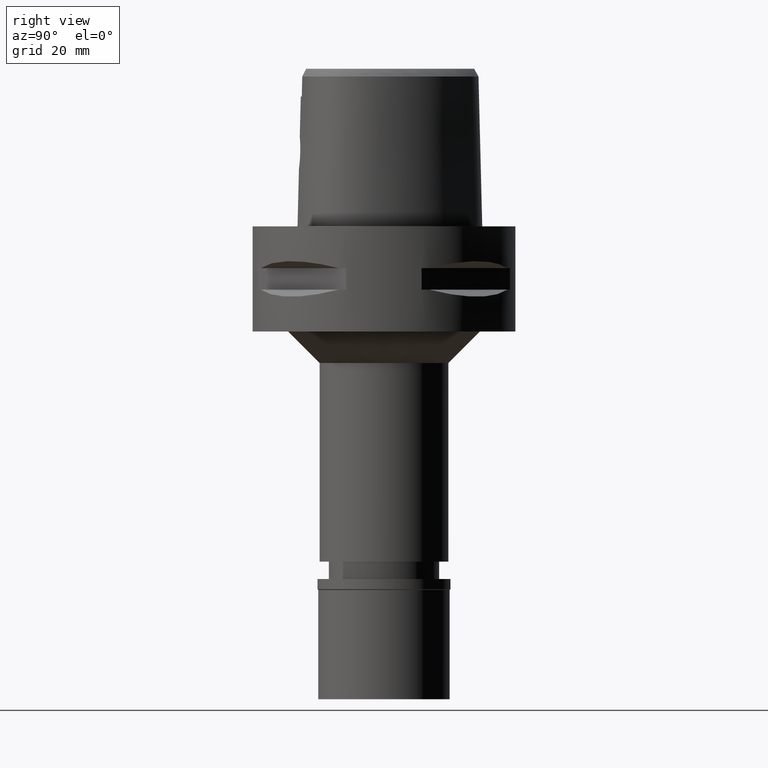
[diagram: clean part render]
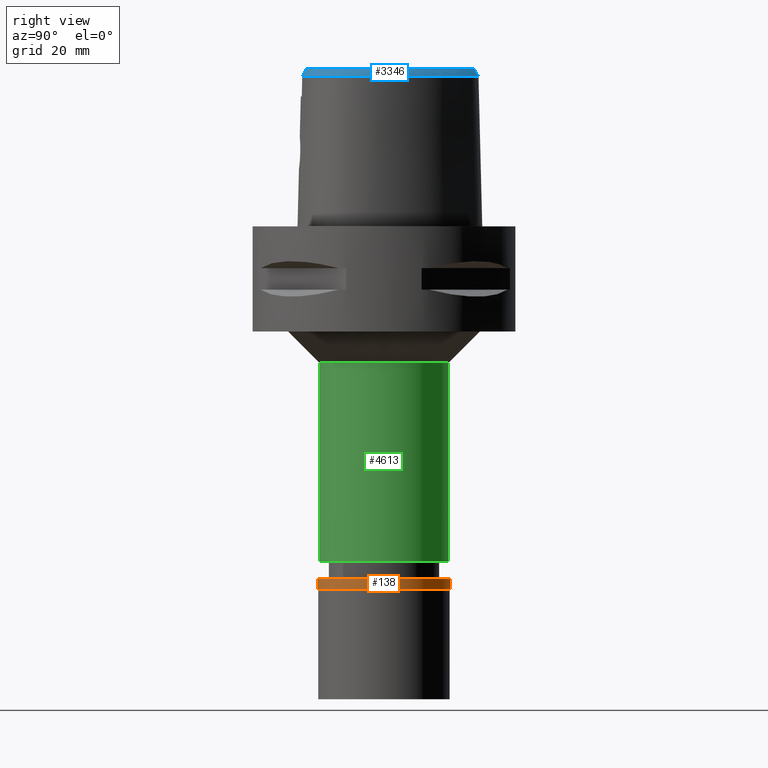
[diagram: same view with three faces highlighted in distinct colors, each labeled with its STEP entity id]
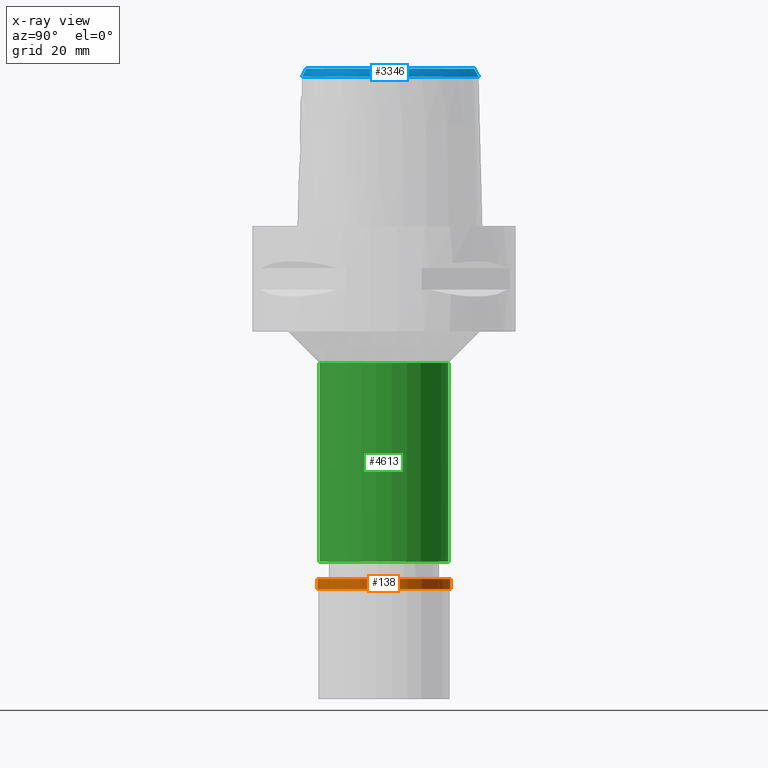
[diagram: x-ray of the same camera — body ghosted, the three highlighted faces saturated]
A machine part, right view with three faces highlighted in distinct colors.
The next image is the same camera in x-ray (body ghosted, the three faces saturated) — at least one of them is partly hidden behind the body in this view.
Their STEP definitions:

[orange] entity #138 — the highlighted cylindrical surface (partial cylindrical patch) has radius 12.65 mm, axis along (0, 0, -1).
#12 = CARTESIAN_POINT ( 'NONE',  ( 0.0000000000000000000, 12.65000000000000036, 0.0000000000000000000 ) ) ;
#138 = ADVANCED_FACE ( 'NONE', ( #2028 ), #930, .T. ) ;
#286 = DIRECTION ( 'NONE',  ( 0.0000000000000000000, 0.0000000000000000000, 1.000000000000000000 ) ) ;
#482 = DIRECTION ( 'NONE',  ( 0.0000000000000000000, 0.0000000000000000000, -1.000000000000000000 ) ) ;
#570 = DIRECTION ( 'NONE',  ( 0.0000000000000000000, 1.000000000000000000, 0.0000000000000000000 ) ) ;
#637 = VERTEX_POINT ( 'NONE', #1814 ) ;
#812 = EDGE_CURVE ( 'NONE', #1335, #637, #4049, .T. ) ;
#828 = DIRECTION ( 'NONE',  ( 0.0000000000000000000, 0.0000000000000000000, -1.000000000000000000 ) ) ;
#930 = CYLINDRICAL_SURFACE ( 'NONE', #4509, 12.65000000000000036 ) ;
#1048 = CARTESIAN_POINT ( 'NONE',  ( 0.0000000000000000000, 0.0000000000000000000, -1.949999999999999956 ) ) ;
#1178 = DIRECTION ( 'NONE',  ( 0.0000000000000000000, 0.0000000000000000000, -1.000000000000000000 ) ) ;
#1229 = CARTESIAN_POINT ( 'NONE',  ( 0.0000000000000000000, 0.0000000000000000000, 0.0000000000000000000 ) ) ;
#1311 = LINE ( 'NONE', #1671, #4052 ) ;
#1335 = VERTEX_POINT ( 'NONE', #12 ) ;
#1450 = DIRECTION ( 'NONE',  ( 0.0000000000000000000, -1.000000000000000000, 0.0000000000000000000 ) ) ;
#1483 = EDGE_CURVE ( 'NONE', #1335, #1625, #1311, .T. ) ;
#1625 = VERTEX_POINT ( 'NONE', #3521 ) ;
#1663 = ORIENTED_EDGE ( 'NONE', *, *, #1483, .F. ) ;
#1671 = CARTESIAN_POINT ( 'NONE',  ( 0.0000000000000000000, 12.65000000000000036, 0.0000000000000000000 ) ) ;
#1814 = CARTESIAN_POINT ( 'NONE',  ( 0.0000000000000000000, -12.65000000000000036, 0.0000000000000000000 ) ) ;
#1855 = LINE ( 'NONE', #3343, #2917 ) ;
#1912 = EDGE_LOOP ( 'NONE', ( #2905, #4309, #4545, #1663 ) ) ;
#2028 = FACE_OUTER_BOUND ( 'NONE', #1912, .T. ) ;
#2463 = CARTESIAN_POINT ( 'NONE',  ( 0.0000000000000000000, 0.0000000000000000000, 0.0000000000000000000 ) ) ;
#2507 = AXIS2_PLACEMENT_3D ( 'NONE', #1048, #286, #1450 ) ;
#2713 = DIRECTION ( 'NONE',  ( 0.0000000000000000000, -1.000000000000000000, 0.0000000000000000000 ) ) ;
#2905 = ORIENTED_EDGE ( 'NONE', *, *, #812, .T. ) ;
#2917 = VECTOR ( 'NONE', #1178, 1000.000000000000000 ) ;
#3343 = CARTESIAN_POINT ( 'NONE',  ( 0.0000000000000000000, -12.65000000000000036, 0.0000000000000000000 ) ) ;
#3456 = EDGE_CURVE ( 'NONE', #4203, #1625, #4659, .T. ) ;
#3521 = CARTESIAN_POINT ( 'NONE',  ( 0.0000000000000000000, 12.65000000000000036, -1.949999999999999956 ) ) ;
#3606 = DIRECTION ( 'NONE',  ( 0.0000000000000000000, 0.0000000000000000000, -1.000000000000000000 ) ) ;
#3912 = CARTESIAN_POINT ( 'NONE',  ( 0.0000000000000000000, -12.65000000000000036, -1.949999999999999956 ) ) ;
#4049 = CIRCLE ( 'NONE', #4600, 12.65000000000000036 ) ;
#4052 = VECTOR ( 'NONE', #482, 1000.000000000000000 ) ;
#4203 = VERTEX_POINT ( 'NONE', #3912 ) ;
#4309 = ORIENTED_EDGE ( 'NONE', *, *, #4517, .T. ) ;
#4509 = AXIS2_PLACEMENT_3D ( 'NONE', #1229, #828, #2713 ) ;
#4517 = EDGE_CURVE ( 'NONE', #637, #4203, #1855, .T. ) ;
#4545 = ORIENTED_EDGE ( 'NONE', *, *, #3456, .T. ) ;
#4600 = AXIS2_PLACEMENT_3D ( 'NONE', #2463, #3606, #570 ) ;
#4659 = CIRCLE ( 'NONE', #2507, 12.65000000000000036 ) ;

[blue] entity #3346 — the highlighted face is a freeform B-spline surface patch.
#14 = CARTESIAN_POINT ( 'NONE',  ( 6.551536749814999894, 15.84752948771000014, 28.38263234800999868 ) ) ;
#26 = CARTESIAN_POINT ( 'NONE',  ( 13.38374903490001877, 6.636915464740205550, 30.00000000000655120 ) ) ;
#38 = CARTESIAN_POINT ( 'NONE',  ( 12.13436960011999943, 9.201438482647001038, 29.55289709708000245 ) ) ;
#67 = CARTESIAN_POINT ( 'NONE',  ( 6.369372423721999965, 15.57476145742000107, 28.96776507817000024 ) ) ;
#91 = CARTESIAN_POINT ( 'NONE',  ( 4.129556163210999387, 17.16871277737000057, 28.38262946176000057 ) ) ;
#116 = CARTESIAN_POINT ( 'NONE',  ( 13.13895547906999894, -10.59822263273999887, 30.13803087782999768 ) ) ;
#125 = CARTESIAN_POINT ( 'NONE',  ( 4.159771979224903049, -14.59766906204601433, 30.00000000000379430 ) ) ;
#136 = CARTESIAN_POINT ( 'NONE',  ( 0.03833113380454000046, 17.08124901733000200, 30.13803084247999919 ) ) ;
#141 = CARTESIAN_POINT ( 'NONE',  ( 8.909267864583000573, -13.56698280132000001, 29.55289674820999934 ) ) ;
#146 = CARTESIAN_POINT ( 'NONE',  ( 13.06460231238424541, -11.91950040983322268, 28.52071728562183495 ) ) ;
#164 = CARTESIAN_POINT ( 'NONE',  ( 3.237284999203999813, -15.63480153526999850, 28.38262913743999860 ) ) ;
#168 = CARTESIAN_POINT ( 'NONE',  ( 3.738627708319834486, -15.49270856215498249, 28.52071728562183495 ) ) ;
#170 = CARTESIAN_POINT ( 'NONE',  ( 14.76450668990651494, -8.742560395149880037, 30.00000000000454037 ) ) ;
#186 = CARTESIAN_POINT ( 'NONE',  ( 12.57746255689999870, -12.32700572357999924, 28.38262931553000001 ) ) ;
#203 = CARTESIAN_POINT ( 'NONE',  ( 3.161808586111999997, 16.84165335421999998, 29.55289646782999924 ) ) ;
#212 = CARTESIAN_POINT ( 'NONE',  ( 11.32659694872999800, -11.98243470765000041, 30.13803081270000206 ) ) ;
#238 = CARTESIAN_POINT ( 'NONE',  ( 15.95360381871000222, 1.814016543685000205, 28.96776486487000213 ) ) ;
#261 = CARTESIAN_POINT ( 'NONE',  ( 16.94225531312000044, -1.559502521191000080, 28.38262796211999728 ) ) ;
#290 = CARTESIAN_POINT ( 'NONE',  ( 16.33559285283999785, -4.393268066705000585, 29.55289702322000167 ) ) ;
#317 = CARTESIAN_POINT ( 'NONE',  ( 15.75342999729000049, -7.231992348993999897, 29.55289682083999736 ) ) ;
#339 = CARTESIAN_POINT ( 'NONE',  ( 16.58480821512000247, -6.777337737269999884, 28.38262841862999863 ) ) ;
#354 = ORIENTED_EDGE ( 'NONE', *, *, #612, .T. ) ;
#356 = CARTESIAN_POINT ( 'NONE',  ( 2.935843368203110426, -15.25651436814729323, 29.10537844854051315 ) ) ;
#363 = CARTESIAN_POINT ( 'NONE',  ( 8.729991171194999566, 13.25559083993999998, 29.55289746334999990 ) ) ;
#391 = CARTESIAN_POINT ( 'NONE',  ( 10.08141572629000038, 12.82664930183999985, 28.38263030800999687 ) ) ;
#406 = CARTESIAN_POINT ( 'NONE',  ( 11.92667412981951358, 9.061218325782361305, 29.99999999999842970 ) ) ;
#417 = CARTESIAN_POINT ( 'NONE',  ( 15.09499504964999872, 4.330199250380999842, 28.96776251765000154 ) ) ;
#441 = CARTESIAN_POINT ( 'NONE',  ( 15.56788079885000187, 3.055983161068000165, 28.96776263318999867 ) ) ;
#451 = VERTEX_POINT ( 'NONE', #1111 ) ;
#454 = CARTESIAN_POINT ( 'NONE',  ( 15.87349190487872796, -5.869792298897654526, 29.99999999999838352 ) ) ;
#469 = CARTESIAN_POINT ( 'NONE',  ( 3.742468295617999985, 16.26394151527999909, 30.13803078479000064 ) ) ;
#481 = CARTESIAN_POINT ( 'NONE',  ( 15.68929135224227167, 0.4919393172822754678, 30.00000000000384404 ) ) ;
#503 = CARTESIAN_POINT ( 'NONE',  ( 14.26907046692376646, -10.79012245165389672, 28.52071728562183495 ) ) ;
#521 = CARTESIAN_POINT ( 'NONE',  ( 1.992814290214999895, -15.74764849337999983, 28.38262940787999966 ) ) ;
#544 = CARTESIAN_POINT ( 'NONE',  ( -0.5036473946677000324, 17.71788516828999960, 28.96776241270000085 ) ) ;
#550 = CARTESIAN_POINT ( 'NONE',  ( 14.08776364905000023, -10.57700137922000039, 28.96776258565000006 ) ) ;
#554 = CARTESIAN_POINT ( 'NONE',  ( 11.33338046474437277, -13.08225241901949509, 28.52071728562183495 ) ) ;
#558 = CARTESIAN_POINT ( 'NONE',  ( 16.11273027397265878, -2.627494158581477723, 30.00000000000289191 ) ) ;
#568 = CARTESIAN_POINT ( 'NONE',  ( 0.04265458737031000563, 18.06533567437000087, 28.38262878582999704 ) ) ;
#574 = CARTESIAN_POINT ( 'NONE',  ( 12.38637698221000072, -12.06038014709000095, 28.96776314277999731 ) ) ;
#594 = CARTESIAN_POINT ( 'NONE',  ( 6.724368147637999726, -14.29944529419000077, 29.55289783683999971 ) ) ;
#612 = EDGE_CURVE ( 'NONE', #451, #2983, #3619, .T. ) ;
#622 = CARTESIAN_POINT ( 'NONE',  ( 10.56802825649999988, -12.42673055756000089, 30.13803087252999902 ) ) ;
#649 = CARTESIAN_POINT ( 'NONE',  ( 16.66263980753000240, -4.418585876082000041, 28.96776326560000214 ) ) ;
#674 = CARTESIAN_POINT ( 'NONE',  ( 14.97382027454000131, -8.212222081050999378, 30.13803089643999655 ) ) ;
#699 = CARTESIAN_POINT ( 'NONE',  ( 14.27643281228000127, -9.863284389019000287, 29.55289689246999885 ) ) ;
#721 = CARTESIAN_POINT ( 'NONE',  ( 16.03543446084000124, -2.631004478139999936, 30.13803086808999865 ) ) ;
#735 = CARTESIAN_POINT ( 'NONE',  ( 6.863227115065781980, 14.51498137220542262, 30.00000000000186517 ) ) ;
#745 = CARTESIAN_POINT ( 'NONE',  ( 7.410135775095000099, 15.23805671824999841, 28.38262789408999964 ) ) ;
#769 = CARTESIAN_POINT ( 'NONE',  ( 14.83268851947000044, 5.760055315187999625, 28.38262950565000153 ) ) ;
#783 = CARTESIAN_POINT ( 'NONE',  ( 9.420872132873974181, 12.20574557692580164, 30.00000000000230216 ) ) ;
#796 = CARTESIAN_POINT ( 'NONE',  ( 5.219618665306000160, 15.51922335729000046, 30.13803032199999876 ) ) ;
#824 = CARTESIAN_POINT ( 'NONE',  ( 8.503747408429999766, 13.01813707188999913, 30.13803064497000150 ) ) ;
#837 = CARTESIAN_POINT ( 'NONE',  ( 12.65514534656671053, -11.12483370673901817, 30.00000000000374456 ) ) ;
#848 = CARTESIAN_POINT ( 'NONE',  ( 15.25749619949000113, 2.950030194648999959, 29.55289674930000388 ) ) ;
#850 = VERTEX_POINT ( 'NONE', #2421 ) ;
#861 = CARTESIAN_POINT ( 'NONE',  ( 13.19176257967088262, -10.65479018522574073, 30.00000000000292033 ) ) ;
#891 = CARTESIAN_POINT ( 'NONE',  ( 2.538962679605324624, -14.79292722369563506, 30.00000000000532552 ) ) ;
#909 = CARTESIAN_POINT ( 'NONE',  ( 6.637684364781000212, -13.98313046854000063, 30.13803052965999996 ) ) ;
#913 = CARTESIAN_POINT ( 'NONE',  ( 7.523733068098958476, 15.26501041874063525, 28.52071728562183495 ) ) ;
#914 = CARTESIAN_POINT ( 'NONE',  ( 9.755668685252649297, -12.92551394023024613, 29.99999999999799982 ) ) ;
#924 = CARTESIAN_POINT ( 'NONE',  ( 3.380477548100999652, 17.46022519133000017, 28.38262749888000158 ) ) ;
#929 = CARTESIAN_POINT ( 'NONE',  ( 2.461427565001999884, -15.71101636460000073, 28.38262941846000231 ) ) ;
#933 = CARTESIAN_POINT ( 'NONE',  ( 13.75951381385800154, 7.944084035686342027, 28.52071728562183495 ) ) ;
#950 = CARTESIAN_POINT ( 'NONE',  ( 12.19529140753000007, -11.79375457059999910, 29.55289697002000082 ) ) ;
#975 = CARTESIAN_POINT ( 'NONE',  ( 6.897735713354000708, -14.93207494546999925, 28.38263245118000100 ) ) ;
#996 = CARTESIAN_POINT ( 'NONE',  ( 7.967626011027999944, -14.26287164014000197, 28.96776467772000174 ) ) ;
#1022 = CARTESIAN_POINT ( 'NONE',  ( 16.26878404146000179, -6.689314243027999929, 28.96776257036000146 ) ) ;
#1055 = CARTESIAN_POINT ( 'NONE',  ( 16.37221643519000125, -7.450177872414998959, 28.38262877585999888 ) ) ;
#1078 = CARTESIAN_POINT ( 'NONE',  ( 16.36310332796000111, -2.616123692410999624, 29.55289674063000049 ) ) ;
#1104 = CARTESIAN_POINT ( 'NONE',  ( 16.28984118434000194, -1.627959546160000048, 29.55289659588999740 ) ) ;
#1111 = CARTESIAN_POINT ( 'NONE',  ( -2.940965197940999906E-11, 17.98202997909999823, 28.52071728569000086 ) ) ;
#1119 = CARTESIAN_POINT ( 'NONE',  ( -6.301949014354000112E-11, 17.15328888647999861, 30.00000000000000000 ) ) ;
#1128 = CARTESIAN_POINT ( 'NONE',  ( 16.25406002408999839, 0.6176658552766001176, 28.96776515213000280 ) ) ;
#1147 = CARTESIAN_POINT ( 'NONE',  ( 5.715993392097999504, 16.36889547866999806, 28.38263488453000249 ) ) ;
#1159 = CARTESIAN_POINT ( 'NONE',  ( 3.772905803807725000, 16.33508552418728499, 30.00000000000252598 ) ) ;
#1171 = CARTESIAN_POINT ( 'NONE',  ( 12.67800110021000037, 9.568457051262999613, 28.38262977515999808 ) ) ;
#1198 = CARTESIAN_POINT ( 'NONE',  ( 8.956234933958999278, 13.49304460798999905, 28.96776428173000184 ) ) ;
#1215 = CARTESIAN_POINT ( 'NONE',  ( 4.499552315896385934, 15.99769543814332984, 29.99999999999693046 ) ) ;
#1226 = CARTESIAN_POINT ( 'NONE',  ( 6.816552447903000633, 14.45327216265000025, 30.13803091858000016 ) ) ;
#1249 = CARTESIAN_POINT ( 'NONE',  ( 15.87826539822000171, 3.161936127487000370, 28.38262851708000056 ) ) ;
#1262 = CARTESIAN_POINT ( 'NONE',  ( 15.99982784346098263, -5.151471542954856098, 29.99999999999514699 ) ) ;
#1283 = CARTESIAN_POINT ( 'NONE',  ( 11.03828478994999784, -13.29112194248000023, 28.38262843360999810 ) ) ;
#1287 = CARTESIAN_POINT ( 'NONE',  ( 3.168920890822999770, -15.55911073834000113, 28.52071374672999582 ) ) ;
#1289 = CARTESIAN_POINT ( 'NONE',  ( 15.51702143705728787, -7.148634146069278827, 29.99999999999708677 ) ) ;
#1302 = CARTESIAN_POINT ( 'NONE',  ( 1.287221948578000097, 17.97648238917999919, 28.38262823442000027 ) ) ;
#1304 = CARTESIAN_POINT ( 'NONE',  ( 2.402956442487999666, -15.05797699065999851, 29.55289699847999785 ) ) ;
#1310 = CARTESIAN_POINT ( 'NONE',  ( 2.406543924163999648, -14.80491841401999942, 30.00000000000000000 ) ) ;
#1325 = CARTESIAN_POINT ( 'NONE',  ( 7.863431566122999428, -13.95187781291000029, 29.55289763486999988 ) ) ;
#1346 = CARTESIAN_POINT ( 'NONE',  ( 11.67472604808999925, -12.53848585555999939, 28.96776302740000020 ) ) ;
#1373 = CARTESIAN_POINT ( 'NONE',  ( 10.00140867588999960, -13.44936643930000031, 28.96776246833999835 ) ) ;
#1398 = CARTESIAN_POINT ( 'NONE',  ( 15.95275986780999844, -6.601290748784998996, 29.55289672209000074 ) ) ;
#1428 = CARTESIAN_POINT ( 'NONE',  ( 16.26930108902000072, 1.902916091849000013, 28.38263201382000034 ) ) ;
#1456 = CARTESIAN_POINT ( 'NONE',  ( 16.06282321624000176, -7.341085110704000272, 28.96776279834999812 ) ) ;
#1480 = CARTESIAN_POINT ( 'NONE',  ( 17.01844106220000086, -2.586362120955000066, 28.38262848571000063 ) ) ;
#1484 = VERTEX_POINT ( 'NONE', #4671 ) ;
#1502 = CARTESIAN_POINT ( 'NONE',  ( 16.61604824872999941, -1.593731033675999997, 28.96776227900999956 ) ) ;
#1519 = CARTESIAN_POINT ( 'NONE',  ( 6.048015628560074575, 15.09357031580160680, 30.00000000000288836 ) ) ;
#1531 = CARTESIAN_POINT ( 'NONE',  ( 9.182478696724000855, 13.73049837603999990, 28.38263110009999934 ) ) ;
#1555 = CARTESIAN_POINT ( 'NONE',  ( 6.005043771536000108, 15.02922539684999848, 30.13803053847000157 ) ) ;
#1568 = CARTESIAN_POINT ( 'NONE',  ( 14.01089202938326395, 5.377385268371460469, 29.99999999999838707 ) ) ;
#1585 = CARTESIAN_POINT ( 'NONE',  ( 13.60503631686000148, 6.754520441166999234, 29.55289684905999792 ) ) ;
#1610 = CARTESIAN_POINT ( 'NONE',  ( 4.464701686442999140, 15.92860880244999855, 30.13803042986000236 ) ) ;
#1624 = CARTESIAN_POINT ( 'NONE',  ( 8.816245487876416931, -13.33426548781419818, 30.00000000000316192 ) ) ;
#1632 = CARTESIAN_POINT ( 'NONE',  ( 12.90069134318999922, 7.999608391154000131, 29.55289675083999867 ) ) ;
#1635 = FACE_OUTER_BOUND ( 'NONE', #4451, .T. ) ;
#1644 = CARTESIAN_POINT ( 'NONE',  ( 13.66559393374916453, -10.18115111194071964, 30.00000000000291323 ) ) ;
#1657 = CARTESIAN_POINT ( 'NONE',  ( -0.3444075886414000309, 18.05459166656000036, 28.38262853131000085 ) ) ;
#1662 = CARTESIAN_POINT ( 'NONE',  ( 13.36281291880000133, -10.83802120768999977, 29.55289670908000232 ) ) ;
#1670 = CARTESIAN_POINT ( 'NONE',  ( 7.783816186093369893, -13.71424622167399399, 30.00000000000447287 ) ) ;
#1682 = CARTESIAN_POINT ( 'NONE',  ( -0.3074730873936999953, 17.07168849203999983, 30.13803086419000010 ) ) ;
#1685 = CARTESIAN_POINT ( 'NONE',  ( 4.303038554316000130, -15.49281357615999966, 28.38262794614999862 ) ) ;
#1707 = CARTESIAN_POINT ( 'NONE',  ( 5.638002124385000258, -15.24130177625000115, 28.38262963552000073 ) ) ;
#1731 = CARTESIAN_POINT ( 'NONE',  ( 10.72478043431000039, -12.71486101920000067, 29.55289672621999841 ) ) ;
#1749 = CARTESIAN_POINT ( 'NONE',  ( 0.6097414589605000268, 17.71739897994999779, 28.96776249226000033 ) ) ;
#1754 = CARTESIAN_POINT ( 'NONE',  ( 11.50066149841000041, -12.26046028159999857, 29.55289692004999935 ) ) ;
#1776 = CARTESIAN_POINT ( 'NONE',  ( 15.82461422179000010, -7.948231088323000293, 28.96776286824000124 ) ) ;
#1801 = CARTESIAN_POINT ( 'NONE',  ( 16.04810124210000311, -3.532281349542000015, 30.13803084545000033 ) ) ;
#1824 = CARTESIAN_POINT ( 'NONE',  ( 14.78434233836000011, -10.27865791069000068, 28.38262903498999989 ) ) ;
#1850 = CARTESIAN_POINT ( 'NONE',  ( 16.11887673621999895, -5.920948860348000053, 29.55289669361000193 ) ) ;
#1871 = CARTESIAN_POINT ( 'NONE',  ( 17.03203537118000099, -3.547294008896999973, 28.38262875107999861 ) ) ;
#1885 = CARTESIAN_POINT ( 'NONE',  ( 10.27891984618426413, 11.24296481357833244, 30.00000000000013500 ) ) ;
#1897 = CARTESIAN_POINT ( 'NONE',  ( 10.47055081062000070, 11.40445505871999998, 29.55289660518999995 ) ) ;
#1923 = CARTESIAN_POINT ( 'NONE',  ( 5.550535149834000315, 16.08567143820999945, 28.96776669702000007 ) ) ;
#1936 = CARTESIAN_POINT ( 'NONE',  ( 1.774127352510920463, 16.97169788998844808, 30.00000000000098410 ) ) ;
#1948 = CARTESIAN_POINT ( 'NONE',  ( 14.23806796639999916, 5.483169884758999579, 29.55289702258000162 ) ) ;
#1970 = CARTESIAN_POINT ( 'NONE',  ( 7.212274666031000869, 14.97646186638000110, 28.96776223559000130 ) ) ;
#1985 = CARTESIAN_POINT ( 'NONE',  ( 10.60500548644159657, -12.49469941440167453, 29.99999999999642952 ) ) ;
#2002 = CARTESIAN_POINT ( 'NONE',  ( 3.871497584816000259, 16.56553193598000107, 29.55289701044999973 ) ) ;
#2010 = CARTESIAN_POINT ( 'NONE',  ( 15.84228676732739238, 3.460033425849370570, 28.52071728562183495 ) ) ;
#2015 = CARTESIAN_POINT ( 'NONE',  ( 15.90185233182503666, -0.6139199331564980655, 29.99999999999905498 ) ) ;
#2024 = CARTESIAN_POINT ( 'NONE',  ( -0.5220147921212999753, 18.04516179411000110, 28.38262817160000040 ) ) ;
#2034 = CARTESIAN_POINT ( 'NONE',  ( 15.39668103802139498, 1.657188505494451070, 30.00000000000070344 ) ) ;
#2046 = CARTESIAN_POINT ( 'NONE',  ( 4.251207443362999605, -15.16896738523000110, 28.96776226880999872 ) ) ;
#2052 = CARTESIAN_POINT ( 'NONE',  ( 10.91764517733085960, 11.98972036053885581, 28.52071728562183495 ) ) ;
#2067 = CARTESIAN_POINT ( 'NONE',  ( 1.969197005757000074, -15.42068974054999941, 28.96776320172000041 ) ) ;
#2073 = CARTESIAN_POINT ( 'NONE',  ( 14.08238499151565826, -9.704590128438008279, 30.00000000000016698 ) ) ;
#2088 = CARTESIAN_POINT ( 'NONE',  ( 1.921962436839000032, -14.76677223488999857, 30.13803078938999747 ) ) ;
#2105 = CARTESIAN_POINT ( 'NONE',  ( -0.3320960882255000191, 17.72695727504999752, 28.96776264226999942 ) ) ;
#2111 = CARTESIAN_POINT ( 'NONE',  ( 2.107411261328000052, -15.08203912954999915, 29.55289700125000252 ) ) ;
#2136 = CARTESIAN_POINT ( 'NONE',  ( 14.91976211627000026, -9.559264641944000829, 28.96776255003999978 ) ) ;
#2161 = CARTESIAN_POINT ( 'NONE',  ( 16.14916949028000204, -0.5733772104507001144, 29.55289704464000167 ) ) ;
#2187 = CARTESIAN_POINT ( 'NONE',  ( 15.79773606866999991, -5.853999113682999855, 30.13803088259999896 ) ) ;
#2198 = B_SPLINE_CURVE_WITH_KNOTS ( 'NONE', 3,
 ( #4135, #356, #4181, #4230 ),
 .UNSPECIFIED., .F., .F.,
 ( 4, 4 ),
 ( 0.0000000000000000000, 1.000000000000000000 ),
 .UNSPECIFIED. ) ;
#2212 = CARTESIAN_POINT ( 'NONE',  ( 15.52339587031000079, -7.818245803772999380, 29.55289685110999898 ) ) ;
#2237 = CARTESIAN_POINT ( 'NONE',  ( 14.69841793836999955, -8.702286480735999419, 30.13803085470000198 ) ) ;
#2258 = CARTESIAN_POINT ( 'NONE',  ( 14.53537824293000114, 5.621612599973000002, 28.96776326410999758 ) ) ;
#2272 = CARTESIAN_POINT ( 'NONE',  ( 0.1912597614439540683, 17.15328888648423344, 30.00000000000438405 ) ) ;
#2282 = CARTESIAN_POINT ( 'NONE',  ( 11.05694432792999926, 10.14495617386999982, 30.13803080269000034 ) ) ;
#2305 = CARTESIAN_POINT ( 'NONE',  ( 15.39923528459999957, 4.452673258068999829, 28.38262833603999979 ) ) ;
#2326 = CARTESIAN_POINT ( 'NONE',  ( 7.863416332662999331, 14.03470952064000166, 29.55289689918999940 ) ) ;
#2337 = CARTESIAN_POINT ( 'NONE',  ( 11.36765809995667276, -12.04801986073177744, 30.00000000000365219 ) ) ;
#2350 = CARTESIAN_POINT ( 'NONE',  ( 14.48651457972999879, 4.085251235003999781, 30.13803088086000059 ) ) ;
#2362 = CARTESIAN_POINT ( 'NONE',  ( 5.446614459517094886, -14.35518554872941266, 30.00000000000096279 ) ) ;
#2385 = CARTESIAN_POINT ( 'NONE',  ( 16.04058509949609501, -1.654113685487872409, 29.99999999999944933 ) ) ;
#2398 = CARTESIAN_POINT ( 'NONE',  ( 2.658254687888999879, 17.68850326707999798, 28.38262832364999966 ) ) ;
#2401 = CARTESIAN_POINT ( 'NONE',  ( 2.133011351492000163, -15.40885465806999832, 28.96776321487000061 ) ) ;
#2419 = CARTESIAN_POINT ( 'NONE',  ( 1.960652411056999833, 17.85909860705000085, 28.38262883884999965 ) ) ;
#2421 = CARTESIAN_POINT ( 'NONE',  ( 3.168920890822999770, -15.55911073834000113, 28.52071374672999582 ) ) ;
#2424 = CARTESIAN_POINT ( 'NONE',  ( 5.568761722102999911, -14.92072184699999937, 28.96776334700000177 ) ) ;
#2430 = CARTESIAN_POINT ( 'NONE',  ( 16.01658383235440652, -8.155509186612656336, 28.52071728562183495 ) ) ;
#2441 = CARTESIAN_POINT ( 'NONE',  ( -0.4852799972140999785, 17.39060854247000165, 29.55289665379999775 ) ) ;
#2446 = CARTESIAN_POINT ( 'NONE',  ( 2.158611441655999830, -15.73567018659000105, 28.38262942848000137 ) ) ;
#2466 = CARTESIAN_POINT ( 'NONE',  ( 13.60914136477000014, -10.12821798170999976, 30.13803087176999895 ) ) ;
#2489 = CARTESIAN_POINT ( 'NONE',  ( 9.031008348660000351, -13.87154520234000010, 28.96776263067999935 ) ) ;
#2518 = CARTESIAN_POINT ( 'NONE',  ( 16.00854589815000040, -4.367950257328000241, 30.13803078084000120 ) ) ;
#2542 = CARTESIAN_POINT ( 'NONE',  ( 15.53889915467000016, -9.214468475167000960, 28.38262864262000207 ) ) ;
#2554 = CARTESIAN_POINT ( 'NONE',  ( -2.940965197940999906E-11, 17.98202997909999823, 28.52071728569000086 ) ) ;
#2567 = CARTESIAN_POINT ( 'NONE',  ( 14.65215292144999992, -9.369486575345000290, 29.55289671327999912 ) ) ;
#2593 = CARTESIAN_POINT ( 'NONE',  ( 15.63673569414999953, -6.513267254542999929, 30.13803087382000001 ) ) ;
#2605 = CARTESIAN_POINT ( 'NONE',  ( 3.078265684543571190, 16.60532678263202300, 30.00000000000343547 ) ) ;
#2616 = CARTESIAN_POINT ( 'NONE',  ( 15.18737131108999883, -9.749042708542001279, 28.38262838678999955 ) ) ;
#2637 = CARTESIAN_POINT ( 'NONE',  ( 11.31867003177000086, 10.34259418375000017, 29.55289695246000292 ) ) ;
#2649 = CARTESIAN_POINT ( 'NONE',  ( 5.258649622038952920, 15.58603480843117595, 30.00000000000532552 ) ) ;
#2661 = CARTESIAN_POINT ( 'NONE',  ( 9.603471610460001529, 12.37738708087999839, 29.55289724438000221 ) ) ;
#2687 = CARTESIAN_POINT ( 'NONE',  ( 8.075975729346000165, 14.28449745623999867, 28.96776297924999710 ) ) ;
#2711 = CARTESIAN_POINT ( 'NONE',  ( 4.907913258013000046, 16.80721549792999880, 28.38263362056999739 ) ) ;
#2737 = CARTESIAN_POINT ( 'NONE',  ( 12.61959674210000237, 7.830655814082999377, 30.13803086494000283 ) ) ;
#2747 = CARTESIAN_POINT ( 'NONE',  ( 16.99625257116782961, -3.273868232426689229, 28.52071728562183495 ) ) ;
#2751 = CARTESIAN_POINT ( 'NONE',  ( 15.71128456932166451, -6.534031654963524005, 30.00000000000769518 ) ) ;
#2766 = CARTESIAN_POINT ( 'NONE',  ( 2.569457893557999917, 17.37269876288999981, 28.96776250974000178 ) ) ;
#2771 = CARTESIAN_POINT ( 'NONE',  ( 13.81052779826999988, -11.31761835756999979, 28.38262837159000185 ) ) ;
#2775 = CARTESIAN_POINT ( 'NONE',  ( -2.940965197940999906E-11, 17.98202997909999823, 28.52071728569000086 ) ) ;
#2788 = CARTESIAN_POINT ( 'NONE',  ( 0.5867554728440999012, 17.39012892361000340, 29.55289668825999883 ) ) ;
#2790 = CARTESIAN_POINT ( 'NONE',  ( 14.32707479118999849, -10.80139307798000026, 28.38262844259000062 ) ) ;
#2795 = CARTESIAN_POINT ( 'NONE',  ( 15.58740368722636838, -8.999391713747051824, 28.52071728562183495 ) ) ;
#2811 = CARTESIAN_POINT ( 'NONE',  ( 3.121381373030000184, -14.65801197327000160, 30.13803081246999938 ) ) ;
#2827 = CARTESIAN_POINT ( 'NONE',  ( 1.150751260874999904, 17.00178922339999943, 30.13803088954000131 ) ) ;
#2833 = CARTESIAN_POINT ( 'NONE',  ( 12.81387575954999924, -11.31882590151999857, 29.55289670684999948 ) ) ;
#2839 = CARTESIAN_POINT ( 'NONE',  ( 1.893775678555631004, 17.84807068955451470, 28.52071728562183495 ) ) ;
#2861 = CARTESIAN_POINT ( 'NONE',  ( 4.199376332408999879, -14.84512119430999988, 29.55289659146999881 ) ) ;
#2870 = ORIENTED_EDGE ( 'NONE', *, *, #4159, .T. ) ;
#2887 = CARTESIAN_POINT ( 'NONE',  ( 16.69077219508000098, -2.601242906683000289, 28.96776261316999879 ) ) ;
#2918 = CARTESIAN_POINT ( 'NONE',  ( 15.82549994262000226, -0.6264363867773999894, 30.13803077422999976 ) ) ;
#2949 = CARTESIAN_POINT ( 'NONE',  ( 16.89759381293999851, -5.278614326026999315, 28.38262859598000176 ) ) ;
#2969 = CARTESIAN_POINT ( 'NONE',  ( 15.26534646171000098, -8.362717170640001640, 29.55289664881000178 ) ) ;
#2983 = VERTEX_POINT ( 'NONE', #3147 ) ;
#2994 = CARTESIAN_POINT ( 'NONE',  ( 15.25873874923999907, -9.043741143689999262, 28.96776271330999819 ) ) ;
#3021 = CARTESIAN_POINT ( 'NONE',  ( 12.40618535016999857, 9.384947766955001214, 28.96776343611999849 ) ) ;
#3033 = EDGE_CURVE ( 'NONE', #451, #850, #3365, .T. ) ;
#3041 = CARTESIAN_POINT ( 'NONE',  ( 11.86255385008000118, 9.017929198338999086, 30.13803075803999931 ) ) ;
#3069 = CARTESIAN_POINT ( 'NONE',  ( 13.18178594427999961, 8.168560968226000085, 28.96776263673999807 ) ) ;
#3091 = VECTOR ( 'NONE', #4104, 1000.000000000000000 ) ;
#3096 = CARTESIAN_POINT ( 'NONE',  ( 4.612438876965999413, 16.22147770095000041, 29.55289816009999981 ) ) ;
#3117 = CARTESIAN_POINT ( 'NONE',  ( 11.84212143944000140, 10.73787020348999910, 28.38262925200999831 ) ) ;
#3128 = CARTESIAN_POINT ( 'NONE',  ( 6.658132732489058014, -14.05774790738724711, 29.99999999999871747 ) ) ;
#3143 = CARTESIAN_POINT ( 'NONE',  ( 13.58667035853999927, -11.07781978262999978, 28.96776254034000075 ) ) ;
#3147 = CARTESIAN_POINT ( 'NONE',  ( -6.301949014354000112E-11, 17.15328888647999861, 30.00000000000000000 ) ) ;
#3164 = CARTESIAN_POINT ( 'NONE',  ( 1.893171206883000002, 17.53805397400999766, 28.96776283855000145 ) ) ;
#3168 = CARTESIAN_POINT ( 'NONE',  ( 8.071820455933000460, -14.57386546735999922, 28.38263172057000006 ) ) ;
#3175 = CARTESIAN_POINT ( 'NONE',  ( 12.04928217775902510, -11.59002493206681272, 30.00000000000144240 ) ) ;
#3184 = CARTESIAN_POINT ( 'NONE',  ( 1.825690002708000081, 17.21700934097999891, 29.55289683824999969 ) ) ;
#3187 = CARTESIAN_POINT ( 'NONE',  ( 2.373720881231000224, -14.73145730369000006, 30.13803078848999917 ) ) ;
#3191 = CARTESIAN_POINT ( 'NONE',  ( 0.6295828025440272091, 17.98202997637752176, 28.52071728562183495 ) ) ;
#3215 = CARTESIAN_POINT ( 'NONE',  ( 2.081811171163999941, -14.75522360103000175, 30.13803078763000087 ) ) ;
#3233 = CARTESIAN_POINT ( 'NONE',  ( 0.04121343618171999235, 17.73730678868999888, 28.96776280471000220 ) ) ;
#3236 = CARTESIAN_POINT ( 'NONE',  ( 12.00420583284000031, -11.52712899411000080, 30.13803079726999812 ) ) ;
#3259 = CARTESIAN_POINT ( 'NONE',  ( 14.53038757532000069, -10.07097114984999919, 28.96776296372999937 ) ) ;
#3285 = CARTESIAN_POINT ( 'NONE',  ( 16.24800464611000095, -5.186618664203999529, 29.55289677110999946 ) ) ;
#3311 = CARTESIAN_POINT ( 'NONE',  ( 15.22217751882999970, -7.688260519223000244, 30.13803083398000027 ) ) ;
#3337 = CARTESIAN_POINT ( 'NONE',  ( 16.44001740376999976, -5.987898607014000341, 28.96776250463000224 ) ) ;
#3346 = ADVANCED_FACE ( 'NONE', ( #1635 ), #4360, .F. ) ;
#3359 = CARTESIAN_POINT ( 'NONE',  ( 15.84839883605999944, -8.663707349818999148, 28.38262815355000157 ) ) ;
#3365 = B_SPLINE_CURVE_WITH_KNOTS ( 'NONE', 3,
 ( #2775, #3191, #2839, #3589, #913, #2052, #933, #2010, #3541, #2747, #3893, #3496, #2430, #2795, #3569, #503, #146, #554, #4692, #4373, #168, #1287 ),
 .UNSPECIFIED., .F., .F.,
 ( 4, 1, 1, 1, 1, 1, 1, 1, 1, 1, 1, 1, 1, 1, 1, 1, 1, 1, 1, 4 ),
 ( 0.0000000000000000000, 0.04404152929334352595, 0.08808305858541862210, 0.1761661171698858663, 0.2642491757542475006, 0.3523322343386091626, 0.4404152929230764069, 0.5284983515073323757, 0.5725398807996189277, 0.6165814100916939822, 0.6606229393839805342, 0.6826437040299651038, 0.7046644686761612819, 0.7266852333222517668, 0.7487059979682363364, 0.7927475272605228884, 0.8367890565527037472, 0.8808305858448844949, 0.9689136444292566486, 1.000000000000000000 ),
 .UNSPECIFIED. ) ;
#3376 = CARTESIAN_POINT ( 'NONE',  ( 11.11868440495910448, 10.19157821280158238, 30.00000000000055067 ) ) ;
#3387 = CARTESIAN_POINT ( 'NONE',  ( 9.364499552547000505, 12.15275597039999944, 30.13803071256999999 ) ) ;
#3413 = CARTESIAN_POINT ( 'NONE',  ( 13.46288054537000001, 8.337513545297001727, 28.38262852262999658 ) ) ;
#3424 = CARTESIAN_POINT ( 'NONE',  ( 12.68590586676424437, 7.870511070825424227, 30.00000000000446576 ) ) ;
#3426 = ORIENTED_EDGE ( 'NONE', *, *, #3033, .F. ) ;
#3436 = CARTESIAN_POINT ( 'NONE',  ( 13.31543265610999960, 6.600608153962999936, 30.13803083462000032 ) ) ;
#3461 = CARTESIAN_POINT ( 'NONE',  ( 6.187208097629000036, 15.30199342714000110, 29.55289780832000091 ) ) ;
#3486 = B_SPLINE_CURVE_WITH_KNOTS ( 'NONE', 3,
 ( #1119, #2272, #4129, #4539, #1936, #4598, #2605, #1159, #1215, #2649, #1519, #735, #3772, #4174, #783, #1885, #3376, #406, #3424, #26, #1568, #4251, #3544, #2034, #481, #2015, #2385, #558, #4646, #4326, #1262, #454, #2751, #1289, #3895, #4280, #170, #3872, #2073, #1644, #861, #837, #3175, #2337, #1985, #914, #1624, #1670, #3128, #2362, #125, #3520, #891, #1310 ),
 .UNSPECIFIED., .F., .F.,
 ( 4, 1, 1, 1, 1, 1, 1, 1, 1, 1, 1, 1, 1, 1, 1, 1, 1, 1, 1, 1, 1, 1, 1, 1, 1, 1, 1, 1, 1, 1, 1, 1, 1, 1, 1, 1, 1, 1, 1, 1, 1, 1, 1, 1, 1, 1, 1, 1, 1, 1, 1, 4 ),
 ( 0.0000000000000000000, 0.01988587058640001182, 0.03977174117009996124, 0.05965761175399997285, 0.07954348233780006439, 0.09942935292160004490, 0.1193152235055000565, 0.1392010940893000370, 0.1590869646731999376, 0.1789728352568999981, 0.1988587058408000097, 0.2187445764247000213, 0.2386304470083999707, 0.2585163175922999823, 0.2784021881761000738, 0.2982880587598999433, 0.3181739293438000660, 0.3380597999276000465, 0.3579456705113999160, 0.3778315410952000075, 0.3977174116791000191, 0.4176032822630000307, 0.4374891528466999802, 0.4573750234305999918, 0.4772608940143999723, 0.4971467645981999528, 0.5170326351820999644, 0.5369185057659000559, 0.5568043763497000365, 0.5766902469335999371, 0.5965761175174000286, 0.6164619881012000091, 0.6363478586849999896, 0.6562337292689000012, 0.6761195998528000128, 0.6960054704364999623, 0.7158913410203999739, 0.7357772116042000654, 0.7556630821880000459, 0.7755489527718999465, 0.7954348233557000381, 0.8153206939395000186, 0.8352065645232999991, 0.8550924351072000107, 0.8749783056909999912, 0.8948641762747999717, 0.9147500468586799993, 0.9346359174424899718, 0.9545217880263200394, 0.9744076586101599879, 0.9942935291939859477, 1.000000000000000000 ),
 .UNSPECIFIED. ) ;
#3490 = CARTESIAN_POINT ( 'NONE',  ( 4.000526874012999556, 16.86712235667999948, 28.96776323610999881 ) ) ;
#3496 = CARTESIAN_POINT ( 'NONE',  ( 16.47905536661004433, -6.962316254603693189, 28.52071728562183495 ) ) ;
#3513 = CARTESIAN_POINT ( 'NONE',  ( 11.84879059778000077, -12.81651142950999933, 28.38262913474000015 ) ) ;
#3520 = CARTESIAN_POINT ( 'NONE',  ( 3.130495111450290135, -14.73481892792162817, 30.00000000000265388 ) ) ;
#3537 = CARTESIAN_POINT ( 'NONE',  ( 6.811051930496000217, -14.61576011983000001, 28.96776514401000213 ) ) ;
#3541 = CARTESIAN_POINT ( 'NONE',  ( 16.79165444020201647, -0.3537785292841344464, 28.52071728562183495 ) ) ;
#3544 = CARTESIAN_POINT ( 'NONE',  ( 15.02033012161998471, 2.869071121502231314, 30.00000000000031974 ) ) ;
#3557 = CARTESIAN_POINT ( 'NONE',  ( 3.052474105117000125, 16.53236743567000033, 30.13803095231000029 ) ) ;
#3564 = CARTESIAN_POINT ( 'NONE',  ( 5.430280917538999219, -14.27956198850999847, 30.13803076995999675 ) ) ;
#3569 = CARTESIAN_POINT ( 'NONE',  ( 15.07117004567100516, -9.793013887526356598, 28.52071728562183495 ) ) ;
#3586 = CARTESIAN_POINT ( 'NONE',  ( 9.862108494712000351, -13.15241539017999983, 29.55289667789999797 ) ) ;
#3589 = CARTESIAN_POINT ( 'NONE',  ( 4.422474504765855130, 17.08283549833086923, 28.52071728562183495 ) ) ;
#3605 = CARTESIAN_POINT ( 'NONE',  ( 2.480661099226999955, 17.05689425869000075, 29.55289669583000034 ) ) ;
#3608 = CARTESIAN_POINT ( 'NONE',  ( 3.198650457145999937, -15.30920501459999983, 28.96776302912000034 ) ) ;
#3619 = LINE ( 'NONE', #2554, #3091 ) ;
#3635 = CARTESIAN_POINT ( 'NONE',  ( 15.63790654838999927, 1.725116995520999952, 29.55289771593000125 ) ) ;
#3657 = CARTESIAN_POINT ( 'NONE',  ( 15.32220927807999900, 1.636217447356000054, 30.13803056699000038 ) ) ;
#3685 = CARTESIAN_POINT ( 'NONE',  ( 16.57279922952000106, -5.232616495114998934, 28.96776268354999928 ) ) ;
#3711 = CARTESIAN_POINT ( 'NONE',  ( 14.97857834380000064, -8.873013812213001117, 29.55289678401000231 ) ) ;
#3738 = CARTESIAN_POINT ( 'NONE',  ( 15.61377043908999873, 0.4751271543027999478, 30.13803052857999987 ) ) ;
#3759 = CARTESIAN_POINT ( 'NONE',  ( 14.18424363835999991, 7.062345015574999607, 28.38262887794000022 ) ) ;
#3772 = CARTESIAN_POINT ( 'NONE',  ( 7.700998872105969895, 13.84384558891376749, 30.00000000000386891 ) ) ;
#3784 = CARTESIAN_POINT ( 'NONE',  ( 11.58039573561000068, 10.54023219361999963, 28.96776310223999928 ) ) ;
#3791 = EDGE_CURVE ( 'NONE', #850, #1484, #2198, .T. ) ;
#3810 = CARTESIAN_POINT ( 'NONE',  ( 13.94075768985999986, 5.344727169545000045, 30.13803078104000122 ) ) ;
#3837 = CARTESIAN_POINT ( 'NONE',  ( 7.014413556966999863, 14.71486701451000023, 29.55289657707999851 ) ) ;
#3859 = CARTESIAN_POINT ( 'NONE',  ( 9.842443668373000776, 12.60201819136000090, 28.96776377620000176 ) ) ;
#3872 = CARTESIAN_POINT ( 'NONE',  ( 14.44767169633061954, -9.224476417585497856, 30.00000000000034817 ) ) ;
#3886 = CARTESIAN_POINT ( 'NONE',  ( 1.241731719344000062, 17.65158466724999897, 28.96776245279000150 ) ) ;
#3893 = CARTESIAN_POINT ( 'NONE',  ( 16.85489147434366686, -5.354527548487574506, 28.52071728562183495 ) ) ;
#3895 = CARTESIAN_POINT ( 'NONE',  ( 15.29323375805336127, -7.718923543003323395, 30.00000000000111200 ) ) ;
#3903 = CARTESIAN_POINT ( 'NONE',  ( 0.6327274450770000724, 18.04466903627999841, 28.38262829625999828 ) ) ;
#3907 = CARTESIAN_POINT ( 'NONE',  ( 10.14070885705999991, -13.74631748841000167, 28.38262825878000228 ) ) ;
#3926 = CARTESIAN_POINT ( 'NONE',  ( 0.5637694867275999666, 17.06285886726999834, 30.13803088425999732 ) ) ;
#3932 = CARTESIAN_POINT ( 'NONE',  ( 9.722808313536001279, -12.85546434105999936, 30.13803088745000025 ) ) ;
#3960 = CARTESIAN_POINT ( 'NONE',  ( 5.499521319820999565, -14.60014191774999937, 29.55289705847999926 ) ) ;
#3983 = CARTESIAN_POINT ( 'NONE',  ( 4.147545221456000242, -14.52127500337999955, 30.13803091414000335 ) ) ;
#4009 = CARTESIAN_POINT ( 'NONE',  ( 2.432192003744999997, -15.38449667763000051, 28.96776320847000008 ) ) ;
#4042 = CARTESIAN_POINT ( 'NONE',  ( 16.57420481658999734, 0.6889352057636000115, 28.38263246390999939 ) ) ;
#4067 = CARTESIAN_POINT ( 'NONE',  ( 14.38454372663000136, -9.179708508746999840, 30.13803087652999935 ) ) ;
#4091 = CARTESIAN_POINT ( 'NONE',  ( 14.02247804923999830, -9.655597628183999248, 30.13803082120999832 ) ) ;
#4104 = DIRECTION ( 'NONE',  ( -1.982169382858034820E-11, -0.4887572537803078765, 0.8724198226067148010 ) ) ;
#4117 = CARTESIAN_POINT ( 'NONE',  ( 16.79650858562000337, -0.4672588577974000068, 28.38262958546999926 ) ) ;
#4129 = CARTESIAN_POINT ( 'NONE',  ( 0.5691917915716099285, 17.14006060248924612, 30.00000000000457234 ) ) ;
#4135 = CARTESIAN_POINT ( 'NONE',  ( 3.168920890822999770, -15.55911073834000113, 28.52071374672999582 ) ) ;
#4140 = CARTESIAN_POINT ( 'NONE',  ( 15.55687264888999977, -8.513212260230000439, 28.96776240117999990 ) ) ;
#4159 = EDGE_CURVE ( 'NONE', #2983, #1484, #3486, .T. ) ;
#4160 = CARTESIAN_POINT ( 'NONE',  ( 10.21975904201000063, 11.19310912977999806, 30.13803090990000300 ) ) ;
#4174 = CARTESIAN_POINT ( 'NONE',  ( 8.557117433366490999, 13.07415149353511907, 30.00000000000287415 ) ) ;
#4181 = CARTESIAN_POINT ( 'NONE',  ( 2.674237079575951803, -15.00654560861921283, 29.59847386629717647 ) ) ;
#4187 = CARTESIAN_POINT ( 'NONE',  ( 14.79075481469000053, 4.207725242691999767, 29.55289669924999885 ) ) ;
#4212 = CARTESIAN_POINT ( 'NONE',  ( 13.89463997760999980, 6.908432728370999421, 28.96776286350000262 ) ) ;
#4230 = CARTESIAN_POINT ( 'NONE',  ( 2.406543924163999648, -14.80491841401999942, 30.00000000000000000 ) ) ;
#4236 = CARTESIAN_POINT ( 'NONE',  ( 14.94711160011999951, 2.844077228230999843, 30.13803086541000198 ) ) ;
#4251 = CARTESIAN_POINT ( 'NONE',  ( 14.55828366952970399, 4.114142377745364065, 29.99999999999929301 ) ) ;
#4278 = ORIENTED_EDGE ( 'NONE', *, *, #3791, .F. ) ;
#4280 = CARTESIAN_POINT ( 'NONE',  ( 15.04259016984584463, -8.247723288182768897, 30.00000000000525446 ) ) ;
#4294 = CARTESIAN_POINT ( 'NONE',  ( 0.03977228499312999987, 17.40927790300999689, 29.55289682359000025 ) ) ;
#4298 = CARTESIAN_POINT ( 'NONE',  ( 1.945579721297999942, -15.09373098771999899, 29.55289699555000027 ) ) ;
#4316 = CARTESIAN_POINT ( 'NONE',  ( 1.758208798534000028, 16.89596470794999661, 30.13803083795000148 ) ) ;
#4319 = CARTESIAN_POINT ( 'NONE',  ( 8.787527380505999020, -13.26242040029000080, 30.13803086575000023 ) ) ;
#4326 = CARTESIAN_POINT ( 'NONE',  ( 16.08569500455584489, -4.373922630229134079, 29.99999999999671374 ) ) ;
#4341 = CARTESIAN_POINT ( 'NONE',  ( -0.3197845878096000072, 17.39932288354999912, 29.55289675323000154 ) ) ;
#4347 = CARTESIAN_POINT ( 'NONE',  ( 10.88153261212999823, -13.00299148084000045, 28.96776257992000225 ) ) ;
#4360 = B_SPLINE_SURFACE_WITH_KNOTS ( 'NONE', 3, 3, ( 
 ( #2088, #4298, #2067, #521 ),
 ( #3215, #2111, #2401, #2446 ),
 ( #3187, #1304, #4009, #929 ),
 ( #2811, #4390, #3608, #164 ),
 ( #3983, #2861, #2046, #1685 ),
 ( #3564, #3960, #2424, #1707 ),
 ( #909, #594, #3537, #975 ),
 ( #4710, #1325, #996, #3168 ),
 ( #4319, #141, #2489, #4734 ),
 ( #3932, #3586, #1373, #3907 ),
 ( #622, #1731, #4347, #1283 ),
 ( #212, #1754, #1346, #3513 ),
 ( #3236, #950, #574, #186 ),
 ( #4759, #2833, #4688, #4370 ),
 ( #116, #1662, #3143, #2771 ),
 ( #2466, #4661, #550, #2790 ),
 ( #4091, #699, #3259, #1824 ),
 ( #4067, #2567, #2136, #2616 ),
 ( #2237, #3711, #2994, #2542 ),
 ( #674, #2969, #4140, #3359 ),
 ( #3311, #2212, #1776, #4836 ),
 ( #4781, #317, #1456, #1055 ),
 ( #2593, #1398, #1022, #339 ),
 ( #2187, #1850, #3337, #4434 ),
 ( #4413, #3285, #3685, #2949 ),
 ( #2518, #290, #649, #4861 ),
 ( #1801, #4808, #4458, #1871 ),
 ( #721, #1078, #2887, #1480 ),
 ( #4480, #1104, #1502, #261 ),
 ( #2918, #2161, #4506, #4117 ),
 ( #3738, #4882, #1128, #4042 ),
 ( #3657, #3635, #238, #1428 ),
 ( #4236, #848, #441, #1249 ),
 ( #2350, #4187, #417, #2305 ),
 ( #3810, #1948, #2258, #769 ),
 ( #3436, #1585, #4212, #3759 ),
 ( #2737, #1632, #3069, #3413 ),
 ( #3041, #38, #3021, #1171 ),
 ( #2282, #2637, #3784, #3117 ),
 ( #4160, #1897, #4634, #4585 ),
 ( #3387, #2661, #3859, #391 ),
 ( #824, #363, #1198, #1531 ),
 ( #4911, #2326, #2687, #4554 ),
 ( #1226, #3837, #1970, #745 ),
 ( #1555, #3461, #67, #14 ),
 ( #796, #4529, #1923, #1147 ),
 ( #1610, #3096, #4611, #2711 ),
 ( #469, #2002, #3490, #91 ),
 ( #3557, #203, #4367, #924 ),
 ( #4726, #3605, #2766, #2398 ),
 ( #4316, #3184, #3164, #2419 ),
 ( #2827, #4685, #3886, #1302 ),
 ( #3926, #2788, #1749, #3903 ),
 ( #136, #4294, #3233, #568 ),
 ( #1682, #4341, #2105, #1657 ),
 ( #4752, #2441, #544, #2024 ) ),
 .UNSPECIFIED., .F., .F., .F.,
 ( 4, 1, 1, 1, 1, 1, 1, 1, 1, 1, 1, 1, 1, 1, 1, 1, 1, 1, 1, 1, 1, 1, 1, 1, 1, 1, 1, 1, 1, 1, 1, 1, 1, 1, 1, 1, 1, 1, 1, 1, 1, 1, 1, 1, 1, 1, 1, 1, 1, 1, 1, 1, 1, 4 ),
 ( 4, 4 ),
 ( -0.006850724150829000207, 0.0000000000000000000, 0.005706470806014000280, 0.02559234138984000165, 0.04547821197368000223, 0.06536408255751000040, 0.08524995314132000068, 0.1051358237252000005, 0.1250216943090000088, 0.1449075648927999893, 0.1647934354767000009, 0.1846793060604999814, 0.2045651766443000175, 0.2244510472280999980, 0.2443369178119999818, 0.2642227883957999901, 0.2841086589796000261, 0.3039945295635000377, 0.3238804001471999872, 0.3437662707310999988, 0.3636521413150000104, 0.3835380118987999909, 0.4034238824826000269, 0.4233097530664000074, 0.4431956236502999635, 0.4630814942340999996, 0.4829673648179000356, 0.5028532354018000472, 0.5227391059856000277, 0.5426249765694000082, 0.5625108471533000198, 0.5823967177369999693, 0.6022825883208999809, 0.6221684589047999925, 0.6420543294886000840, 0.6619402000723999535, 0.6818260706561999340, 0.7017119412401000567, 0.7215978118238999262, 0.7414836824077000177, 0.7613695529916000293, 0.7812554235752999787, 0.8011412941591999903, 0.8210271647431000019, 0.8409130353268000624, 0.8607989059106999630, 0.8806847764944999435, 0.9005706470783999551, 0.9204565176621999356, 0.9403423882460000272, 0.9602282588299000388, 0.9801141294135999882, 1.000000000000000000, 1.016057694064999906 ),
 ( -0.07048921207172000047, 1.070521281485000031 ),
 .UNSPECIFIED. ) ;
#4367 = CARTESIAN_POINT ( 'NONE',  ( 3.271143067105999780, 17.15093927277999697, 28.96776198335999908 ) ) ;
#4370 = CARTESIAN_POINT ( 'NONE',  ( 13.22934390814999972, -11.82658982964000138, 28.38262836350000029 ) ) ;
#4373 = CARTESIAN_POINT ( 'NONE',  ( 5.902447799197675593, -15.16907841529512702, 28.52071728562183495 ) ) ;
#4390 = CARTESIAN_POINT ( 'NONE',  ( 3.160015915087999616, -14.98360849392999938, 29.55289692079000119 ) ) ;
#4413 = CARTESIAN_POINT ( 'NONE',  ( 15.92321006269000350, -5.140620833292000924, 30.13803085866999965 ) ) ;
#4434 = CARTESIAN_POINT ( 'NONE',  ( 16.76115807132000057, -6.054848353678999651, 28.38262831564000166 ) ) ;
#4451 = EDGE_LOOP ( 'NONE', ( #3426, #354, #2870, #4278 ) ) ;
#4458 = CARTESIAN_POINT ( 'NONE',  ( 16.70405732815000022, -3.542289789111999987, 28.96776278252999859 ) ) ;
#4480 = CARTESIAN_POINT ( 'NONE',  ( 15.96363411994999915, -1.662188058644000099, 30.13803091277000235 ) ) ;
#4506 = CARTESIAN_POINT ( 'NONE',  ( 16.47283903794999560, -0.5203180341240999374, 28.96776331506000091 ) ) ;
#4529 = CARTESIAN_POINT ( 'NONE',  ( 5.385076907570000238, 15.80244739774999729, 29.55289850951000119 ) ) ;
#4539 = CARTESIAN_POINT ( 'NONE',  ( 1.161482229273505862, 17.07843133414490921, 30.00000000000540012 ) ) ;
#4554 = CARTESIAN_POINT ( 'NONE',  ( 8.288535126029000111, 14.53428539183000012, 28.38262905929999746 ) ) ;
#4585 = CARTESIAN_POINT ( 'NONE',  ( 10.97213434784999997, 11.82714691658999939, 28.38262799576000006 ) ) ;
#4598 = CARTESIAN_POINT ( 'NONE',  ( 2.412811123804892155, 16.81558681049720860, 30.00000000000230216 ) ) ;
#4611 = CARTESIAN_POINT ( 'NONE',  ( 4.760176067489000573, 16.51434659943999961, 28.96776589032999993 ) ) ;
#4634 = CARTESIAN_POINT ( 'NONE',  ( 10.72134257923000078, 11.61580098766000013, 28.96776230046999956 ) ) ;
#4646 = CARTESIAN_POINT ( 'NONE',  ( 16.12546998862885417, -3.533461825553577462, 30.00000000000892442 ) ) ;
#4661 = CARTESIAN_POINT ( 'NONE',  ( 13.84845250691000018, -10.35260968046999963, 29.55289672870999951 ) ) ;
#4671 = CARTESIAN_POINT ( 'NONE',  ( 2.406543924163999648, -14.80491841401999942, 30.00000000000000000 ) ) ;
#4685 = CARTESIAN_POINT ( 'NONE',  ( 1.196241490109000161, 17.32668694532999965, 29.55289667116000274 ) ) ;
#4688 = CARTESIAN_POINT ( 'NONE',  ( 13.02160983384999859, -11.57270786557999998, 28.96776253516999944 ) ) ;
#4692 = CARTESIAN_POINT ( 'NONE',  ( 8.702202469522562822, -14.36510984285927428, 28.52071728562183495 ) ) ;
#4710 = CARTESIAN_POINT ( 'NONE',  ( 7.759237121216999711, -13.64088398569000127, 30.13803059201999801 ) ) ;
#4726 = CARTESIAN_POINT ( 'NONE',  ( 2.391864304897000082, 16.74108975450000258, 30.13803088191999890 ) ) ;
#4734 = CARTESIAN_POINT ( 'NONE',  ( 9.152748832737000129, -14.17610760336999931, 28.38262851314999935 ) ) ;
#4752 = CARTESIAN_POINT ( 'NONE',  ( -0.4669125997604999800, 17.06333191665000015, 30.13803089488999731 ) ) ;
#4759 = CARTESIAN_POINT ( 'NONE',  ( 12.60614168524999990, -11.06494393745999893, 30.13803087851999862 ) ) ;
#4781 = CARTESIAN_POINT ( 'NONE',  ( 15.44403677835000011, -7.122899587282999434, 30.13803084331999926 ) ) ;
#4808 = CARTESIAN_POINT ( 'NONE',  ( 16.37607928513000033, -3.537285569327000445, 29.55289681398999946 ) ) ;
#4836 = CARTESIAN_POINT ( 'NONE',  ( 16.12583257326999941, -8.078216372873001205, 28.38262888536999995 ) ) ;
#4861 = CARTESIAN_POINT ( 'NONE',  ( 16.98968676221999985, -4.443903685458999497, 28.38262950797999906 ) ) ;
#4882 = CARTESIAN_POINT ( 'NONE',  ( 15.93391523159000123, 0.5463965047897000327, 29.55289784036000000 ) ) ;
#4911 = CARTESIAN_POINT ( 'NONE',  ( 7.650856935980000273, 13.78492158505000020, 30.13803081913999904 ) ) ;

[green] entity #4613 — the highlighted cylindrical surface (partial cylindrical patch) has radius 12.25 mm, axis along (0, 0, -1).
#8 = EDGE_CURVE ( 'NONE', #4504, #2923, #551, .T. ) ;
#19 = FACE_OUTER_BOUND ( 'NONE', #2556, .T. ) ;
#69 = AXIS2_PLACEMENT_3D ( 'NONE', #4193, #802, #2311 ) ;
#85 = VERTEX_POINT ( 'NONE', #1284 ) ;
#150 = CARTESIAN_POINT ( 'NONE',  ( 0.0000000000000000000, 0.0000000000000000000, -26.00000000000000000 ) ) ;
#316 = VECTOR ( 'NONE', #2336, 1000.000000000000000 ) ;
#500 = CARTESIAN_POINT ( 'NONE',  ( 0.0000000000000000000, -12.25000000000000000, -26.00000000000000000 ) ) ;
#512 = ORIENTED_EDGE ( 'NONE', *, *, #8, .T. ) ;
#525 = EDGE_CURVE ( 'NONE', #85, #1947, #3309, .T. ) ;
#551 = LINE ( 'NONE', #500, #961 ) ;
#802 = DIRECTION ( 'NONE',  ( 0.0000000000000000000, 0.0000000000000000000, -1.000000000000000000 ) ) ;
#884 = DIRECTION ( 'NONE',  ( 0.0000000000000000000, 0.0000000000000000000, -1.000000000000000000 ) ) ;
#961 = VECTOR ( 'NONE', #884, 1000.000000000000000 ) ;
#1143 = DIRECTION ( 'NONE',  ( 0.0000000000000000000, 0.0000000000000000000, 1.000000000000000000 ) ) ;
#1180 = CARTESIAN_POINT ( 'NONE',  ( 0.0000000000000000000, -12.25000000000000000, -63.79999999999999716 ) ) ;
#1193 = CIRCLE ( 'NONE', #4819, 12.25000000000000000 ) ;
#1227 = ORIENTED_EDGE ( 'NONE', *, *, #525, .F. ) ;
#1284 = CARTESIAN_POINT ( 'NONE',  ( 0.0000000000000000000, 12.25000000000000000, -26.00000000000000000 ) ) ;
#1560 = CYLINDRICAL_SURFACE ( 'NONE', #69, 12.25000000000000000 ) ;
#1604 = DIRECTION ( 'NONE',  ( 0.0000000000000000000, -1.000000000000000000, 0.0000000000000000000 ) ) ;
#1947 = VERTEX_POINT ( 'NONE', #2774 ) ;
#1993 = CARTESIAN_POINT ( 'NONE',  ( 0.0000000000000000000, 1.274244994512999739E-14, -63.79999999999999716 ) ) ;
#2126 = CIRCLE ( 'NONE', #4897, 12.25000000000000000 ) ;
#2311 = DIRECTION ( 'NONE',  ( 0.0000000000000000000, -1.000000000000000000, 0.0000000000000000000 ) ) ;
#2336 = DIRECTION ( 'NONE',  ( 0.0000000000000000000, 0.0000000000000000000, -1.000000000000000000 ) ) ;
#2556 = EDGE_LOOP ( 'NONE', ( #4650, #512, #3514, #1227 ) ) ;
#2576 = CARTESIAN_POINT ( 'NONE',  ( 0.0000000000000000000, -12.25000000000000000, -26.00000000000000000 ) ) ;
#2774 = CARTESIAN_POINT ( 'NONE',  ( 0.0000000000000000000, 12.25000000000000000, -63.79999999999999716 ) ) ;
#2777 = DIRECTION ( 'NONE',  ( 0.0000000000000000000, 1.000000000000000000, 0.0000000000000000000 ) ) ;
#2923 = VERTEX_POINT ( 'NONE', #1180 ) ;
#3152 = DIRECTION ( 'NONE',  ( 0.0000000000000000000, 0.0000000000000000000, -1.000000000000000000 ) ) ;
#3309 = LINE ( 'NONE', #4249, #316 ) ;
#3514 = ORIENTED_EDGE ( 'NONE', *, *, #3640, .T. ) ;
#3640 = EDGE_CURVE ( 'NONE', #2923, #1947, #2126, .T. ) ;
#4169 = EDGE_CURVE ( 'NONE', #85, #4504, #1193, .T. ) ;
#4193 = CARTESIAN_POINT ( 'NONE',  ( 0.0000000000000000000, 1.274244994512999739E-14, 4.049999999999999822 ) ) ;
#4249 = CARTESIAN_POINT ( 'NONE',  ( 0.0000000000000000000, 12.25000000000000000, -26.00000000000000000 ) ) ;
#4504 = VERTEX_POINT ( 'NONE', #2576 ) ;
#4613 = ADVANCED_FACE ( 'NONE', ( #19 ), #1560, .T. ) ;
#4650 = ORIENTED_EDGE ( 'NONE', *, *, #4169, .T. ) ;
#4819 = AXIS2_PLACEMENT_3D ( 'NONE', #150, #3152, #2777 ) ;
#4897 = AXIS2_PLACEMENT_3D ( 'NONE', #1993, #1143, #1604 ) ;